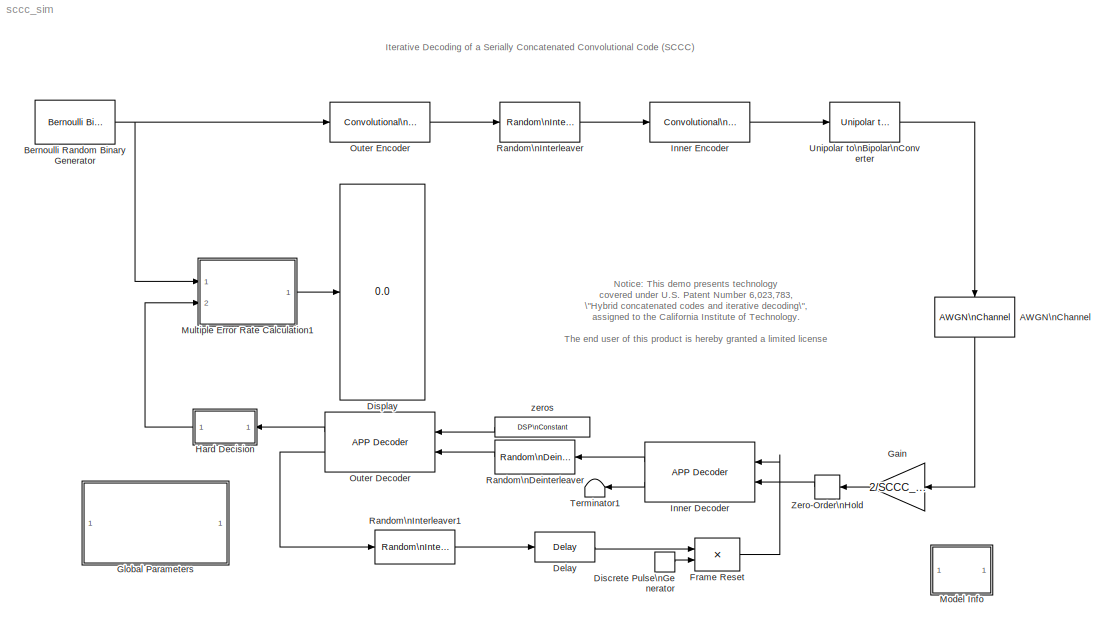
MODEL sccc_sim
KIND model
CONFIG PostLoadFcn = sccc_setup;
BLOCK [Reference] AWGN\nChannel  REF=commchan2/AWGN\nChannel
  EbNodB = 10
  EsNodB = 0
  Ports = [1, 1]
  Ps = 1
  SNRdB = 10
  ShowPortLabels = on
  SourceBlock = commchan2/AWGN\nChannel
  SourceType = AWGN Channel
  Tsym = 1/len/3
  bitsPerSym = 1
  noiseMode = Variance from mask
  seed = 123449
  variance = SCCC_Var
BLOCK [Reference] Bernoulli Random Binary Generator  REF=commrandsrc2/Bernoulli Binary\nGenerator
  P = 0.5
  Ports = [0, 1]
  ShowPortLabels = on
  SourceBlock = commrandsrc2/Bernoulli Binary\nGenerator
  SourceType = Bernoulli Binary Generator
  Ts = SCCC_numIter/SCCC_len
  frameBased = on
  orient = off
  sampPerFrame = SCCC_len
  seed = 12343
BLOCK [Reference] Delay  REF=dspsigops/Delay
  Ports = [1, 1]
  SourceBlock = dspsigops/Delay
  SourceType = Delay
  delay = SCCC_len*2
  dif_ic_for_ch = off
  dif_ic_for_dly = off
  dly_unit = Samples
  ic = 0
  ic_detail = off
  reset_popup = None
BLOCK [DiscretePulseGenerator] Discrete Pulse\nGenerator
  Period = SCCC_numIter
  PhaseDelay = 1
  Ports = [0, 1]
  PulseWidth = SCCC_numIter-1
BLOCK [Display] Display
  Decimation = 1
  Format = short_e
  Ports = [1]
BLOCK [Product] Frame Reset
  Ports = [2, 1]
  RndMeth = Floor
BLOCK [Gain] Gain
  Gain = 2/SCCC_Var
BLOCK [SubSystem] Global Parameters
  MaskCallbackString = sccc_setup|sccc_setup|sccc_setup|sccc_setup
  MaskDescription = Load global parameters in MATLAB workspace.
  MaskDisplay = disp(['Eb/No   ' num2str(SCCC_EbN0dB,'%3.1f') 'dB' \nsprintf('\\n') 'Block size   ' num2str(SCCC_len,'%7.0f') \nsprintf('\\n') 'Iterations   ' num2str(SCCC_numIter,'%3.0f')  \nsprintf('\\n') 'Seed   ' num2str(SCCC_seed,'%7.0f')])\n
  MaskEnableString = on,on,on,on
  MaskIconFrame = on
  MaskIconOpaque = on
  MaskIconRotate = none
  MaskIconUnits = autoscale
  MaskInitialization = sccc_setup;
  MaskPromptString = Eb/No:|Block size:|Number of iterations:|Seed:
  MaskStyleString = edit,edit,edit,edit
  MaskTabNameString = ,,,
  MaskToolTipString = on,on,on,on
  MaskTunableValueString = on,on,on,on
  MaskType = Global Parameters
  MaskValueString = 1.5|1024|6|19046
  MaskVarAliasString = ,,,
  MaskVariables = SCCC_EbN0dB=@1;SCCC_len=@2;SCCC_numIter=@3;SCCC_seed=@4;
  MaskVisibilityString = on,on,on,on
  MinAlgLoopOccurrences = off
  Ports = []
  PropExecContextAcrossSSBoundary = on
  RTWSystemCode = Auto
  TreatAsAtomicUnit = off
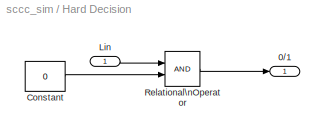
BLOCK [SubSystem] Hard Decision
  MaskDescription = Likelihood to binary transformation.\n
  MaskIconFrame = on
  MaskIconOpaque = on
  MaskIconRotate = none
  MaskIconUnits = autoscale
  MaskType = Hard Decision
  MinAlgLoopOccurrences = off
  Ports = [1, 1]
  PropExecContextAcrossSSBoundary = on
  RTWSystemCode = Auto
  TreatAsAtomicUnit = off
BLOCK [Outport] Hard Decision/0//1
  BusOutputAsStruct = off
  IconDisplay = Port number
BLOCK [Constant] Hard Decision/Constant
  Value = 0
BLOCK [Inport] Hard Decision/Lin
  IconDisplay = Port number
  LatchInput = off
BLOCK [RelationalOperator] Hard Decision/Relational\nOperator
BLOCK [Reference] Inner Decoder  REF=commcnvcod2/APP Decoder
  Ports = [2, 2]
  SourceBlock = commcnvcod2/APP Decoder
  SourceType = APP Decoder
  algorithm = Max*
  maxStarNumScaleBits = 3
  termMethod = Truncated
  trellis = poly2trellis([3 3],[7 0 5;0 7 6],[7 7])
BLOCK [Reference] Inner Encoder  REF=commcnvcod2/Convolutional\nEncoder
  Ports = [1, 1]
  SourceBlock = commcnvcod2/Convolutional\nEncoder
  SourceType = Convolutional Encoder
  reset = On each frame
  trellis = poly2trellis([3 3],[7 0 5;0 7 6],[7 7])
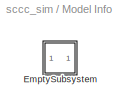
BLOCK [SubSystem] Model Info
  CopyFcn = slcm CopyBlock;
  DeleteFcn = slcm Cancel;
  InitFcn = slcm('UpdateAllCMBlocksInThisModelInit')
  LoadFcn = slcm LoadBlock;
  MaskCallbackString = ||||||||||||||||||||||||||||||
  MaskDescription = This block allows revision control information to be displayed within the model.
  MaskDisplay = text(str2num(LeftAlignmentValue), 0.5, MaskDisplayString, 'HorizontalAlignment', HorizontalTextAlignment)\n
  MaskEnableString = on,on,on,on,on,on,on,on,on,on,on,on,on,on,on,on,on,on,on,on,on,on,on,on,on,on,on,on,on,on,on
  MaskIconFrame = on
  MaskIconOpaque = on
  MaskIconRotate = none
  MaskIconUnits = normalized
  MaskPromptString = InitialSaveTempField|InitialBlockCM|BlockCM|Frame|SaveTempField|DisplayStringWithTags|MaskDisplayString|HorizontalTextAlignment|LeftAlignmentValue|SourceBlockDiagram|TagMaxNumber|CMTag1|CMTag2|CMTag3|CMTag4|CMTag5|CMTag6|CMTag7|CMTag8|CMTag9|CMTag10|CMTag11|CMTag12|CMTag13|CMTag14|CMTag15|CMTag16|CMTag17|CMTag18|CMTag19|CMTag20
  MaskSelfModifiable = on
  MaskStyleString = edit,edit,edit,edit,edit,edit,edit,edit,edit,edit,edit,edit,edit,edit,edit,edit,edit,edit,edit,edit,edit,edit,edit,edit,edit,edit,edit,edit,edit,edit,edit
  MaskTabNameString = ,,,,,,,,,,,,,,,,,,,,,,,,,,,,,,
  MaskToolTipString = on,on,on,on,on,on,on,on,on,on,on,on,on,on,on,on,on,on,on,on,on,on,on,on,on,on,on,on,on,on,on
  MaskTunableValueString = on,on,on,on,on,on,on,on,on,on,on,on,on,on,on,on,on,on,on,on,on,on,on,on,on,on,on,on,on,on,on
  MaskType = CMBlock
  MaskValueString = |none|none|on||Info|Info|Center|0.5|sccc_sim|20||||||||||||||||||||
  MaskVarAliasString = ,,,,,,,,,,,,,,,,,,,,,,,,,,,,,,
  MaskVariables = InitialSaveTempField=&1;InitialBlockCM=&2;BlockCM=&3;Frame=&4;SaveTempField=&5;DisplayStringWithTags=&6;MaskDisplayString=&7;HorizontalTextAlignment=&8;LeftAlignmentValue=&9;SourceBlockDiagram=&10;TagMaxNumber=@11;CMTag1=&12;CMTag2=&13;CMTag3=&14;CMTag4=&15;CMTag5=&16;CMTag6=&17;CMTag7=&18;CMTag8=&19;CMTag9=&20;CMTag10=&21;CMTag11=&22;CMTag12=&23;CMTag13=&24;CMTag14=&25;CMTag15=&26;CMTag16=&27;CMT...<+45ch>
  MaskVisibilityString = off,off,off,off,off,off,off,off,off,off,off,off,off,off,off,off,off,off,off,off,off,off,off,off,off,off,off,off,off,off,off
  MinAlgLoopOccurrences = off
  NameChangeFcn = slcm Rename;
  OpenFcn = commdemohelp;
  Ports = []
  PostSaveFcn = slcm('UpdateAllCMBlocksInThisModel')
  PropExecContextAcrossSSBoundary = on
  RTWSystemCode = Auto
  TreatAsAtomicUnit = off
BLOCK [SubSystem] Model Info/EmptySubsystem
  MinAlgLoopOccurrences = off
  Ports = []
  PropExecContextAcrossSSBoundary = on
  RTWSystemCode = Auto
  TreatAsAtomicUnit = off
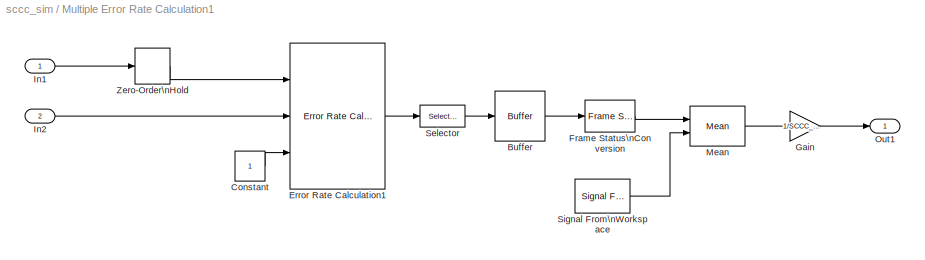
BLOCK [SubSystem] Multiple Error Rate Calculation1
  MaskDisplay = disp('Multiple\\nIteration\\nError Rate\\nCalculation')
  MaskIconFrame = on
  MaskIconOpaque = on
  MaskIconRotate = none
  MaskIconUnits = autoscale
  MinAlgLoopOccurrences = off
  Ports = [2, 1]
  PropExecContextAcrossSSBoundary = on
  RTWSystemCode = Auto
  TreatAsAtomicUnit = off
BLOCK [Reference] Multiple Error Rate Calculation1/Buffer  REF=dspbuff3/Buffer
  N = SCCC_numIter
  Ports = [1, 1]
  SourceBlock = dspbuff3/Buffer
  SourceType = Buffer
  V = 0
  ic = 0
BLOCK [Constant] Multiple Error Rate Calculation1/Constant
BLOCK [Reference] Multiple Error Rate Calculation1/Error Rate Calculation1  REF=commsink2/Error Rate Calculation
  N = 0
  PMode = Port
  Ports = [3, 1]
  RsMode2 = on
  SourceBlock = commsink2/Error Rate Calculation
  SourceType = Error Rate Calculation
  WsName = ErrorVec1
  cp_mode = Entire frame
  st_delay = 0
  subframe = []
BLOCK [Reference] Multiple Error Rate Calculation1/Frame Status\nConversion  REF=dspsigattribs/Frame Status\nConversion
  Ports = [1, 1]
  SourceBlock = dspsigattribs/Frame Status\nConversion
  SourceType = Frame Status Conversion
  growRefPort = off
  outframe = Sample-based
BLOCK [Gain] Multiple Error Rate Calculation1/Gain
  Gain = 1/SCCC_len
BLOCK [Inport] Multiple Error Rate Calculation1/In1
  IconDisplay = Port number
  LatchInput = off
BLOCK [Inport] Multiple Error Rate Calculation1/In2
  IconDisplay = Port number
  LatchInput = off
  Port = 2
BLOCK [Reference] Multiple Error Rate Calculation1/Mean  REF=dspstat3/Mean
  Ports = [2, 1]
  SourceBlock = dspstat3/Mean
  SourceType = Mean
  reset_popup = Non-zero sample
  run = on
BLOCK [Outport] Multiple Error Rate Calculation1/Out1
  BusOutputAsStruct = off
  IconDisplay = Port number
BLOCK [Selector] Multiple Error Rate Calculation1/Selector
  Elements = 2
  InputPortWidth = 3
  Ports = [1, 1]
BLOCK [Reference] Multiple Error Rate Calculation1/Signal From\nWorkspace  REF=dspsrcs4/Signal From\nWorkspace
  OutputAfterFinalValue = Setting to zero
  Ports = [0, 1]
  SourceBlock = dspsrcs4/Signal From\nWorkspace
  SourceType = Signal From Workspace
  Ts = SCCC_numIter
  X = [1 1]
  nsamps = 1
BLOCK [ZeroOrderHold] Multiple Error Rate Calculation1/Zero-Order\nHold
BLOCK [Reference] Outer Decoder  REF=commcnvcod2/APP Decoder
  Ports = [2, 2]
  SourceBlock = commcnvcod2/APP Decoder
  SourceType = APP Decoder
  algorithm = Max*
  maxStarNumScaleBits = 3
  termMethod = Truncated
  trellis = poly2trellis(3, [7 5],7)
BLOCK [Reference] Outer Encoder  REF=commcnvcod2/Convolutional\nEncoder
  Ports = [1, 1]
  SourceBlock = commcnvcod2/Convolutional\nEncoder
  SourceType = Convolutional Encoder
  reset = On each frame
  trellis = poly2trellis(3, [7 5],7)
BLOCK [Reference] Random\nDeinterleaver  REF=commblkintrlv2/Random\nDeinterleaver
  N = SCCC_len*2
  Ports = [1, 1]
  ShowPortLabels = on
  SourceBlock = commblkintrlv2/Random\nDeinterleaver
  SourceType = Random Deinterleaver
  seed = SCCC_seed
BLOCK [Reference] Random\nInterleaver  REF=commblkintrlv2/Random\nInterleaver
  N = SCCC_len*2
  Ports = [1, 1]
  ShowPortLabels = on
  SourceBlock = commblkintrlv2/Random\nInterleaver
  SourceType = Random Interleaver
  seed = SCCC_seed
BLOCK [Reference] Random\nInterleaver1  REF=commblkintrlv2/Random\nInterleaver
  N = SCCC_len*2
  Ports = [1, 1]
  ShowPortLabels = on
  SourceBlock = commblkintrlv2/Random\nInterleaver
  SourceType = Random Interleaver
  seed = SCCC_seed
BLOCK [Terminator] Terminator1
BLOCK [Reference] Unipolar to\nBipolar\nConverter  REF=commutil2/Unipolar to\nBipolar\nConverter
  M = 2
  Ports = [1, 1]
  ShowPortLabels = on
  SourceBlock = commutil2/Unipolar to\nBipolar\nConverter
  SourceType = Unipolar to Bipolar Converter
  polarity = Positive
BLOCK [ZeroOrderHold] Zero-Order\nHold
  SampleTime = SCCC_numIter
BLOCK [Reference] zeros  REF=dspsrcs4/DSP\nConstant
  FramebasedOutput = on
  InterpretAs1D = off
  Ports = [0, 1]
  SampleMode = Discrete
  ShowPortLabels = on
  SourceBlock = dspsrcs4/DSP\nConstant
  SourceType = DSP Constant
  Ts = 1
  Value = zeros(SCCC_len,1)
  additionalParams = off
  allowOverrides = on
  continuousOutput = Sample-based
  dataType = Inherit from 'Constant value'
  discreteOutput = Frame-based
  fracBitsMode = Best precision
  framePeriod = 1
  isSigned = on
  numFracBits = 15
  sampTime = 1
  udDataType = sfix(16)
  wordLen = 16
ANNOTATION (root): Iterative Decoding of a Serially Concatenated Convolutional Code (SCCC)
ANNOTATION (root): Notice: This demo presents technology\ncovered under U.S. Patent Number 6,023,783, \n\"Hybrid concatenated codes and iterative decoding\", \nassigned to the California Institute of Technology.\n\nThe end user of this product is hereby granted a limited license \nto use this demo solely for the purpose of assessing \npossible commercial and educational applications of the \ntechnology. Any other us...<+89ch>
LINE AWGN\nChannel:1 -> Gain:1
NET Bernoulli Random Binary Generator:1 -> Multiple Error Rate Calculation1:1, Outer Encoder:1
LINE Delay:1 -> Frame Reset:1
LINE Discrete Pulse\nGenerator:1 -> Frame Reset:2
LINE Frame Reset:1 -> Inner Decoder:1
LINE Gain:1 -> Zero-Order\nHold:1
LINE Hard Decision/Constant:1 -> Hard Decision/Relational\nOperator:2
LINE Hard Decision/Lin:1 -> Hard Decision/Relational\nOperator:1
LINE Hard Decision/Relational\nOperator:1 -> Hard Decision/0//1:1
LINE Hard Decision:1 -> Multiple Error Rate Calculation1:2
LINE Inner Decoder:1 -> Random\nDeinterleaver:1
LINE Inner Decoder:2 -> Terminator1:1
LINE Inner Encoder:1 -> Unipolar to\nBipolar\nConverter:1
LINE Multiple Error Rate Calculation1/Buffer:1 -> Multiple Error Rate Calculation1/Frame Status\nConversion:1
LINE Multiple Error Rate Calculation1/Constant:1 -> Multiple Error Rate Calculation1/Error Rate Calculation1:3
LINE Multiple Error Rate Calculation1/Error Rate Calculation1:1 -> Multiple Error Rate Calculation1/Selector:1
LINE Multiple Error Rate Calculation1/Frame Status\nConversion:1 -> Multiple Error Rate Calculation1/Mean:1
LINE Multiple Error Rate Calculation1/Gain:1 -> Multiple Error Rate Calculation1/Out1:1
LINE Multiple Error Rate Calculation1/In1:1 -> Multiple Error Rate Calculation1/Zero-Order\nHold:1
LINE Multiple Error Rate Calculation1/In2:1 -> Multiple Error Rate Calculation1/Error Rate Calculation1:2
LINE Multiple Error Rate Calculation1/Mean:1 -> Multiple Error Rate Calculation1/Gain:1
LINE Multiple Error Rate Calculation1/Selector:1 -> Multiple Error Rate Calculation1/Buffer:1
LINE Multiple Error Rate Calculation1/Signal From\nWorkspace:1 -> Multiple Error Rate Calculation1/Mean:2
LINE Multiple Error Rate Calculation1/Zero-Order\nHold:1 -> Multiple Error Rate Calculation1/Error Rate Calculation1:1
LINE Multiple Error Rate Calculation1:1 -> Display:1
LINE Outer Decoder:1 -> Hard Decision:1
LINE Outer Decoder:2 -> Random\nInterleaver1:1
LINE Outer Encoder:1 -> Random\nInterleaver:1
LINE Random\nDeinterleaver:1 -> Outer Decoder:2
LINE Random\nInterleaver1:1 -> Delay:1
LINE Random\nInterleaver:1 -> Inner Encoder:1
LINE Unipolar to\nBipolar\nConverter:1 -> AWGN\nChannel:1
LINE Zero-Order\nHold:1 -> Inner Decoder:2
LINE zeros:1 -> Outer Decoder:1
note: NET lines group one-source signal fan-out (src -> all destinations, sorted); 1:1 wires keep LINE
